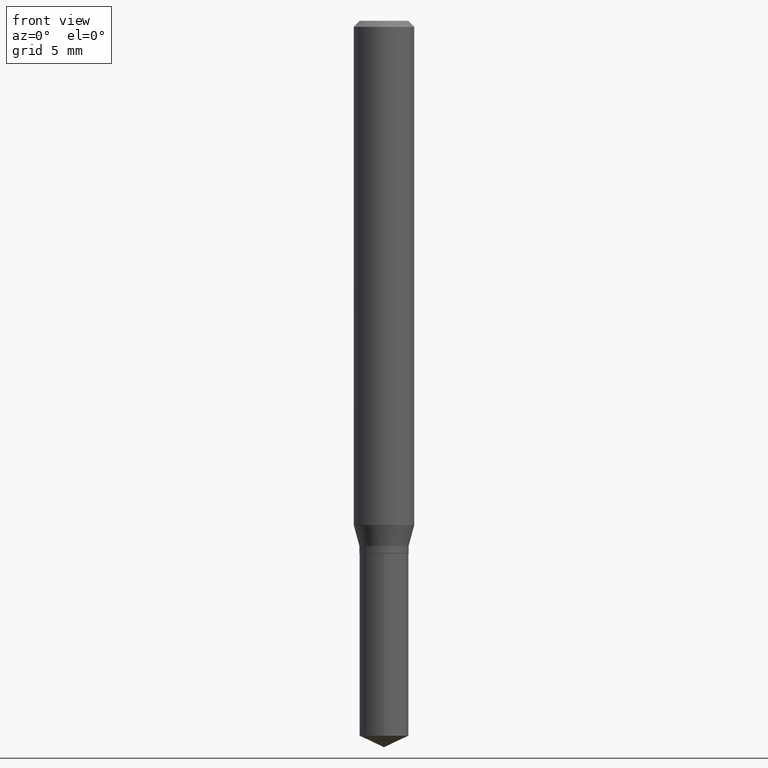
[diagram: clean part render]
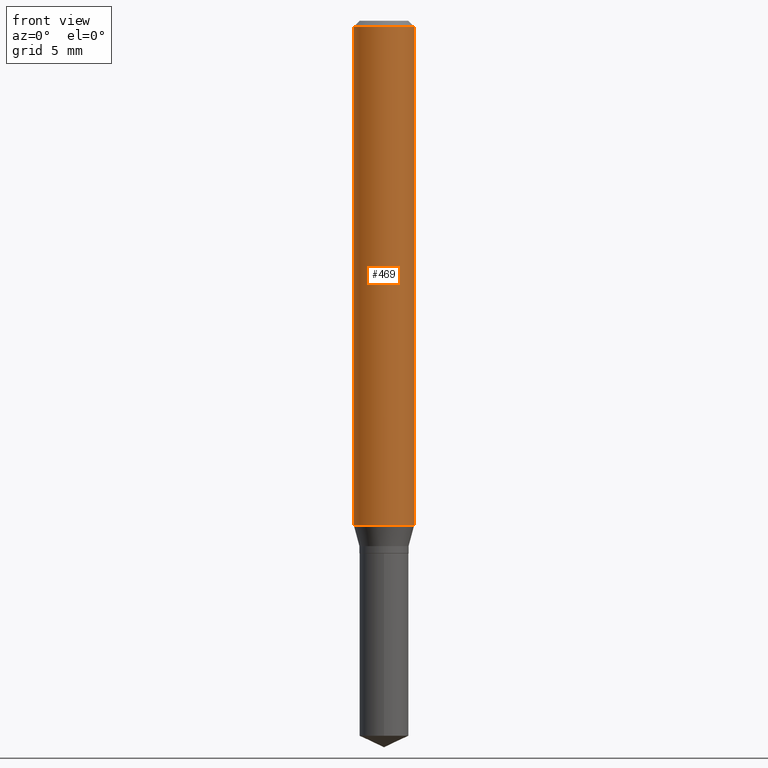
[diagram: same view with one face highlighted and labeled with its STEP entity id]
A machine part, front view. The second image highlights one B-rep face of the part: STEP entity #469.
In plain terms, the highlighted cylindrical surface (edge-blend (fillet) strip) has radius 1.5875 mm, axis along (-0, 0, 1).
Its self-contained STEP definition (entity closure, byte-faithful):
#7 = CARTESIAN_POINT ( 'NONE',  ( -0.06250000000000006939, 4.440892098500631092E-16, -3.074334431409319267E-30 ) ) ;
#9 = ORIENTED_EDGE ( 'NONE', *, *, #23, .T. ) ;
#12 = AXIS2_PLACEMENT_3D ( 'NONE', #420, #34, #83 ) ;
#20 = EDGE_CURVE ( 'NONE', #400, #54, #275, .T. ) ;
#23 = EDGE_CURVE ( 'NONE', #297, #54, #36, .T. ) ;
#34 = DIRECTION ( 'NONE',  ( -2.445468806185136597E-29, 3.491481338843145583E-15, 1.000000000000000000 ) ) ;
#36 = LINE ( 'NONE', #486, #51 ) ;
#37 = CARTESIAN_POINT ( 'NONE',  ( 3.056836007731442729E-31, -4.364351673553962300E-17, -0.01250000000000008916 ) ) ;
#51 = VECTOR ( 'NONE', #153, 39.37007874015748143 ) ;
#54 = VERTEX_POINT ( 'NONE', #344 ) ;
#58 = EDGE_CURVE ( 'NONE', #490, #297, #226, .T. ) ;
#62 = AXIS2_PLACEMENT_3D ( 'NONE', #37, #312, #418 ) ;
#83 = DIRECTION ( 'NONE',  ( 1.000000000000000000, -6.982962677686264344E-15, 0.000000000000000000 ) ) ;
#113 = EDGE_LOOP ( 'NONE', ( #328, #179, #9, #476 ) ) ;
#153 = DIRECTION ( 'NONE',  ( -2.445468806185136877E-29, 3.491481338843145188E-15, 1.000000000000000000 ) ) ;
#155 = DIRECTION ( 'NONE',  ( -2.445468806185136597E-29, 3.491481338843145583E-15, 1.000000000000000000 ) ) ;
#158 = CARTESIAN_POINT ( 'NONE',  ( -0.06250000000000012490, -3.190362713961645999E-15, -1.040948403011065615 ) ) ;
#179 = ORIENTED_EDGE ( 'NONE', *, *, #58, .T. ) ;
#184 = EDGE_CURVE ( 'NONE', #490, #400, #315, .T. ) ;
#222 = CARTESIAN_POINT ( 'NONE',  ( 0.06250000000000012490, -4.070887091167102256E-15, -1.040948403011065615 ) ) ;
#226 = CIRCLE ( 'NONE', #12, 0.06250000000000012490 ) ;
#268 = FACE_OUTER_BOUND ( 'NONE', #113, .T. ) ;
#275 = CIRCLE ( 'NONE', #62, 0.06250000000000000000 ) ;
#285 = AXIS2_PLACEMENT_3D ( 'NONE', #343, #155, #419 ) ;
#297 = VERTEX_POINT ( 'NONE', #222 ) ;
#301 = VECTOR ( 'NONE', #395, 39.37007874015748143 ) ;
#311 = CYLINDRICAL_SURFACE ( 'NONE', #285, 0.06250000000000006939 ) ;
#312 = DIRECTION ( 'NONE',  ( -2.445468806185136597E-29, 3.491481338843145583E-15, 1.000000000000000000 ) ) ;
#315 = LINE ( 'NONE', #7, #301 ) ;
#328 = ORIENTED_EDGE ( 'NONE', *, *, #184, .F. ) ;
#343 = CARTESIAN_POINT ( 'NONE',  ( 0.000000000000000000, 0.000000000000000000, 0.000000000000000000 ) ) ;
#344 = CARTESIAN_POINT ( 'NONE',  ( 0.06250000000000000000, -4.800786840909313294E-16, -0.01250000000000008916 ) ) ;
#371 = CARTESIAN_POINT ( 'NONE',  ( -0.06250000000000000000, -1.394958510423560486E-15, -0.01250000000000008916 ) ) ;
#395 = DIRECTION ( 'NONE',  ( -2.445468806185136877E-29, 3.491481338843145188E-15, 1.000000000000000000 ) ) ;
#400 = VERTEX_POINT ( 'NONE', #371 ) ;
#418 = DIRECTION ( 'NONE',  ( 1.000000000000000000, -6.982962677686266711E-15, 0.000000000000000000 ) ) ;
#419 = DIRECTION ( 'NONE',  ( 1.000000000000000000, -6.982962677686266711E-15, 4.876176775795935793E-29 ) ) ;
#420 = CARTESIAN_POINT ( 'NONE',  ( 2.545606848411795149E-29, -3.634451923811709009E-15, -1.040948403011065615 ) ) ;
#469 = ADVANCED_FACE ( 'NONE', ( #268 ), #311, .T. ) ;
#476 = ORIENTED_EDGE ( 'NONE', *, *, #20, .F. ) ;
#486 = CARTESIAN_POINT ( 'NONE',  ( 0.06250000000000006939, -4.364351673553921624E-16, 3.047610484872463374E-30 ) ) ;
#490 = VERTEX_POINT ( 'NONE', #158 ) ;